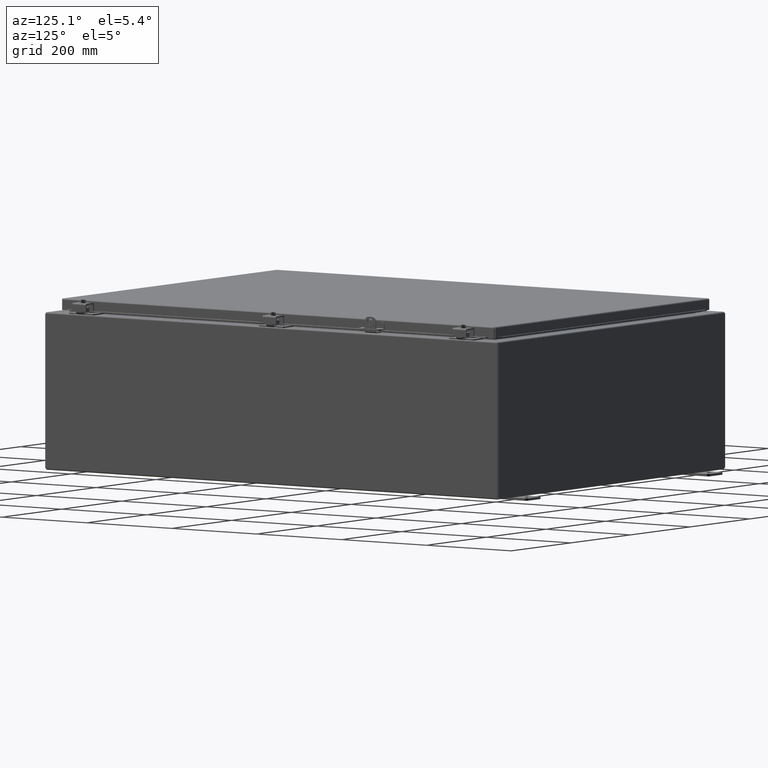
[diagram: clean part render]
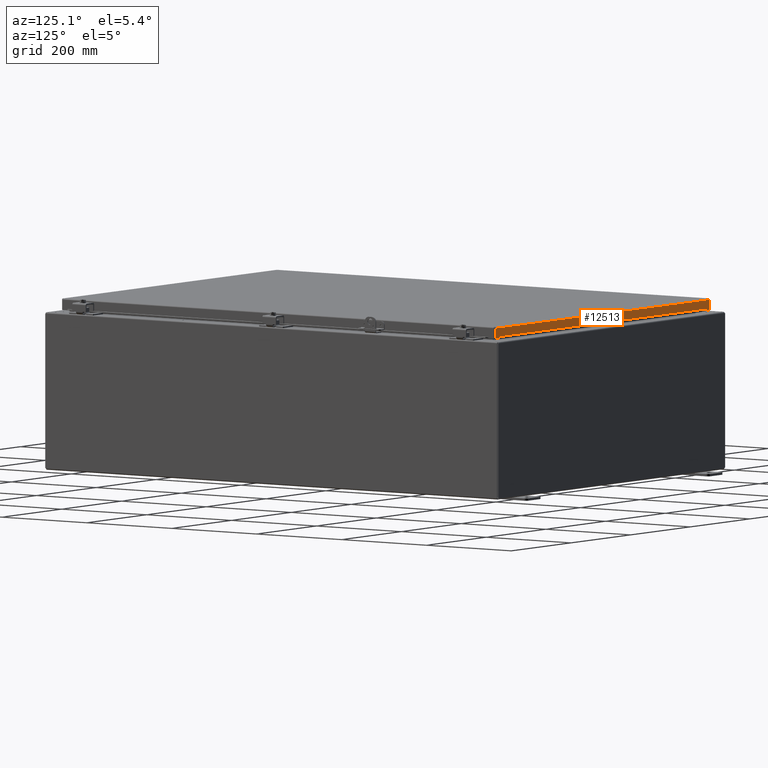
[diagram: same view with one face highlighted and labeled with its STEP entity id]
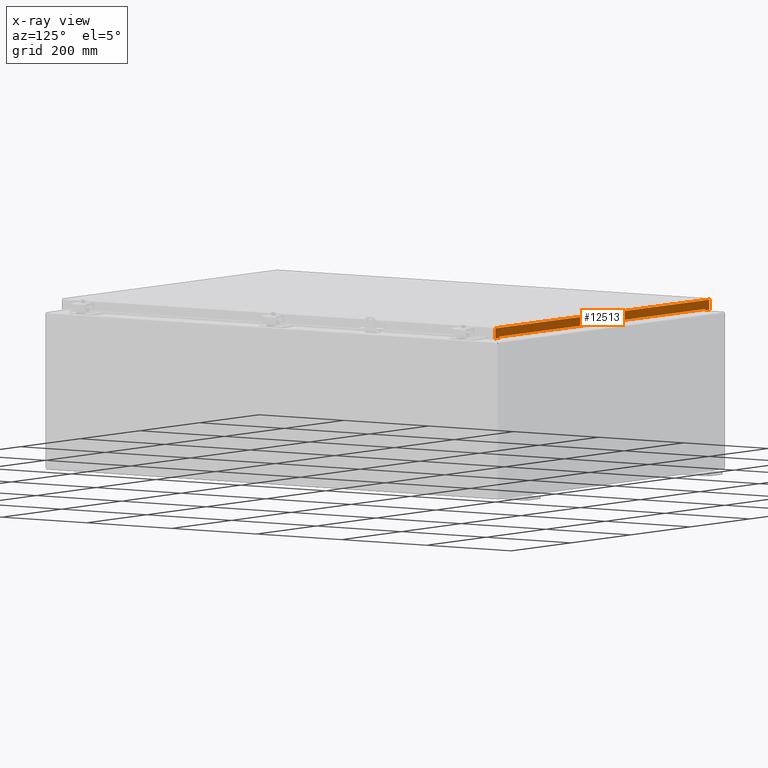
[diagram: x-ray of the same camera — body ghosted, the highlighted face saturated]
A machine part, auxiliary view. The second image highlights one B-rep face of the part: STEP entity #12513.
The next image is the same camera in x-ray: the body ghosted, the highlighted face saturated — about 0% of this face is hidden behind the body in this view.
In plain terms, the highlighted planar face has unit normal (0, -1, 0).
Its self-contained STEP definition (entity closure, byte-faithful):
#12130=CARTESIAN_POINT('',(13.602451456543962,-20.093750000000011,0.769749999999998));
#12131=VERTEX_POINT('',#12130);
#12156=CARTESIAN_POINT('',(-13.602451456543953,-20.093750000000011,0.769749999999998));
#12157=VERTEX_POINT('',#12156);
#12212=CARTESIAN_POINT('',(13.60245145654396,-20.093750000000007,0.769749999999998));
#12213=DIRECTION('',(-1.0,0.0,0.0));
#12214=VECTOR('',#12213,27.204902913087913);
#12215=LINE('',#12212,#12214);
#12216=EDGE_CURVE('',#12131,#12157,#12215,.T.);
#12236=CARTESIAN_POINT('',(-13.602451456543953,-20.093750000000011,0.769549999999999));
#12237=VERTEX_POINT('',#12236);
#12244=CARTESIAN_POINT('',(-13.602451456543953,-20.093750000000007,0.769749999999998));
#12245=DIRECTION('',(0.0,0.0,-1.0));
#12246=VECTOR('',#12245,0.0002);
#12247=LINE('',#12244,#12246);
#12248=EDGE_CURVE('',#12157,#12237,#12247,.T.);
#12268=CARTESIAN_POINT('',(-13.602651456543954,-20.093750000000011,0.874999999999999));
#12269=VERTEX_POINT('',#12268);
#12276=CARTESIAN_POINT('',(-13.602651456543954,-20.093750000000011,0.769549999999999));
#12277=VERTEX_POINT('',#12276);
#12278=CARTESIAN_POINT('',(-13.602651456543954,-20.093750000000007,0.769549999999998));
#12279=DIRECTION('',(0.0,0.0,1.0));
#12280=VECTOR('',#12279,0.10545);
#12281=LINE('',#12278,#12280);
#12282=EDGE_CURVE('',#12277,#12269,#12281,.T.);
#12305=CARTESIAN_POINT('',(-13.602451456543953,-20.093750000000007,0.769549999999999));
#12306=DIRECTION('',(-1.0,0.0,0.0));
#12307=VECTOR('',#12306,0.000200000000001);
#12308=LINE('',#12305,#12307);
#12309=EDGE_CURVE('',#12237,#12277,#12308,.T.);
#12395=CARTESIAN_POINT('',(13.602651456543963,-20.093750000000011,0.769549999999999));
#12396=VERTEX_POINT('',#12395);
#12403=CARTESIAN_POINT('',(13.602651456543963,-20.093750000000011,0.874999999999999));
#12404=VERTEX_POINT('',#12403);
#12405=CARTESIAN_POINT('',(13.602651456543963,-20.093750000000007,0.874999999999999));
#12406=DIRECTION('',(0.0,0.0,-1.0));
#12407=VECTOR('',#12406,0.10545);
#12408=LINE('',#12405,#12407);
#12409=EDGE_CURVE('',#12404,#12396,#12408,.T.);
#12426=CARTESIAN_POINT('',(13.602451456543962,-20.093750000000011,0.769549999999999));
#12427=VERTEX_POINT('',#12426);
#12428=CARTESIAN_POINT('',(13.602451456543962,-20.093750000000007,0.769549999999998));
#12429=DIRECTION('',(0.0,0.0,1.0));
#12430=VECTOR('',#12429,0.0002);
#12431=LINE('',#12428,#12430);
#12432=EDGE_CURVE('',#12427,#12131,#12431,.T.);
#12451=CARTESIAN_POINT('',(13.602651456543963,-20.093750000000007,0.769549999999999));
#12452=DIRECTION('',(-1.0,0.0,0.0));
#12453=VECTOR('',#12452,0.000200000000001);
#12454=LINE('',#12451,#12453);
#12455=EDGE_CURVE('',#12396,#12427,#12454,.T.);
#12461=CARTESIAN_POINT('',(-0.046950708161295,-20.093750000000007,0.440146161915879));
#12462=DIRECTION('',(0.0,1.0,0.0));
#12463=DIRECTION('',(1.0,0.0,0.0));
#12464=AXIS2_PLACEMENT_3D('',#12461,#12462,#12463);
#12465=PLANE('',#12464);
#12466=ORIENTED_EDGE('',*,*,#12282,.T.);
#12467=CARTESIAN_POINT('',(-14.102451456543955,-20.093750000000011,0.874999999999999));
#12468=VERTEX_POINT('',#12467);
#12469=CARTESIAN_POINT('',(-14.102451456543953,-20.093750000000011,0.874999999999999));
#12470=DIRECTION('',(1.0,0.0,0.0));
#12471=VECTOR('',#12470,0.499799999999999);
#12472=LINE('',#12469,#12471);
#12473=EDGE_CURVE('',#12468,#12269,#12472,.T.);
#12474=ORIENTED_EDGE('',*,*,#12473,.F.);
#12475=CARTESIAN_POINT('',(-14.102451456543955,-20.093750000000004,0.105249999999994));
#12476=VERTEX_POINT('',#12475);
#12477=CARTESIAN_POINT('',(-14.10245145654395,-20.093750000000007,0.105249999999994));
#12478=DIRECTION('',(0.0,0.0,1.0));
#12479=VECTOR('',#12478,0.769750000000004);
#12480=LINE('',#12477,#12479);
#12481=EDGE_CURVE('',#12476,#12468,#12480,.T.);
#12482=ORIENTED_EDGE('',*,*,#12481,.F.);
#12483=CARTESIAN_POINT('',(14.102451456543962,-20.093750000000007,0.105249999999998));
#12484=VERTEX_POINT('',#12483);
#12485=CARTESIAN_POINT('',(-14.102451456543953,-20.093750000000007,0.105249999999998));
#12486=DIRECTION('',(1.0,0.0,0.0));
#12487=VECTOR('',#12486,28.204902913087917);
#12488=LINE('',#12485,#12487);
#12489=EDGE_CURVE('',#12476,#12484,#12488,.T.);
#12490=ORIENTED_EDGE('',*,*,#12489,.T.);
#12491=CARTESIAN_POINT('',(14.102451456543962,-20.093750000000011,0.874999999999999));
#12492=VERTEX_POINT('',#12491);
#12493=CARTESIAN_POINT('',(14.102451456543962,-20.093750000000007,0.874999999999998));
#12494=DIRECTION('',(0.0,0.0,-1.0));
#12495=VECTOR('',#12494,0.76975);
#12496=LINE('',#12493,#12495);
#12497=EDGE_CURVE('',#12492,#12484,#12496,.T.);
#12498=ORIENTED_EDGE('',*,*,#12497,.F.);
#12499=CARTESIAN_POINT('',(13.602651456543965,-20.093750000000011,0.874999999999999));
#12500=DIRECTION('',(1.0,0.0,0.0));
#12501=VECTOR('',#12500,0.499799999999997);
#12502=LINE('',#12499,#12501);
#12503=EDGE_CURVE('',#12404,#12492,#12502,.T.);
#12504=ORIENTED_EDGE('',*,*,#12503,.F.);
#12505=ORIENTED_EDGE('',*,*,#12409,.T.);
#12506=ORIENTED_EDGE('',*,*,#12455,.T.);
#12507=ORIENTED_EDGE('',*,*,#12432,.T.);
#12508=ORIENTED_EDGE('',*,*,#12216,.T.);
#12509=ORIENTED_EDGE('',*,*,#12248,.T.);
#12510=ORIENTED_EDGE('',*,*,#12309,.T.);
#12511=EDGE_LOOP('',(#12466,#12474,#12482,#12490,#12498,#12504,#12505,#12506,#12507,#12508,#12509,#12510));
#12512=FACE_OUTER_BOUND('',#12511,.T.);
#12513=ADVANCED_FACE('',(#12512),#12465,.F.);